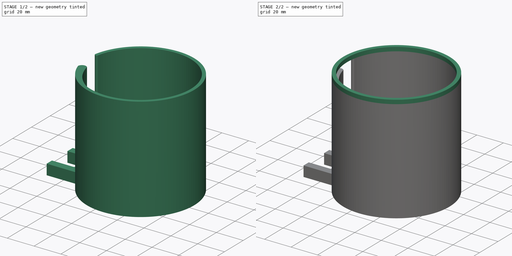
[diagram: build sequence overview — one tinted view per stage of 2, left to right]
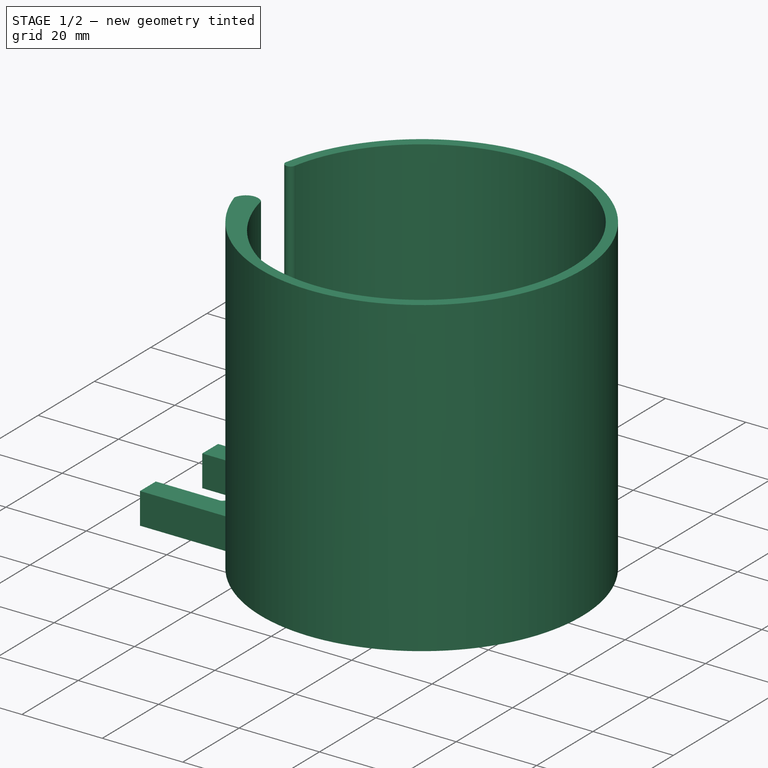
[diagram: stage 1 of 2 — iso view after this stage's code; geometry added in this stage tinted green]
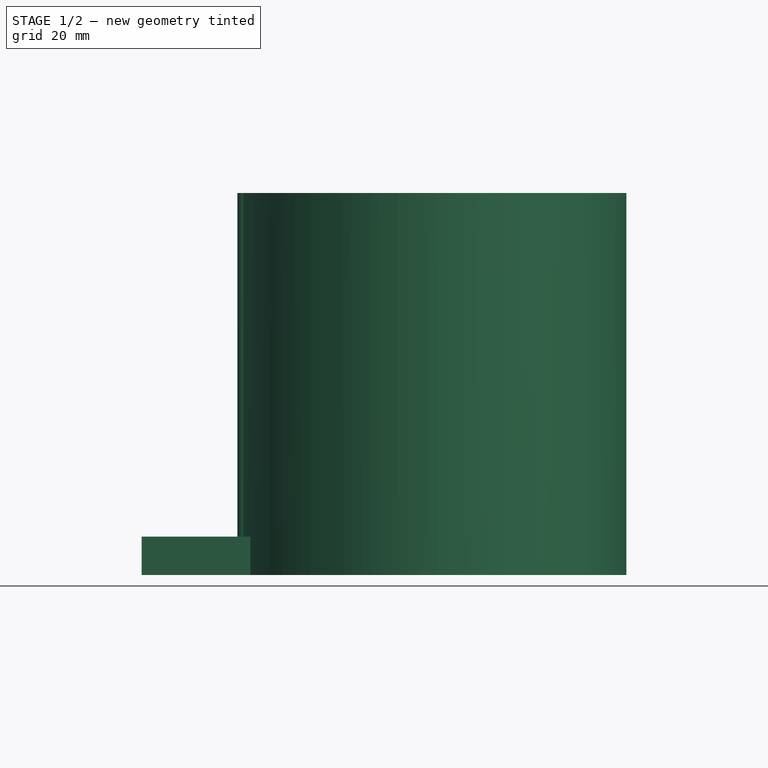
[diagram: stage 1 of 2 — front view after this stage's code; geometry added in this stage tinted green]
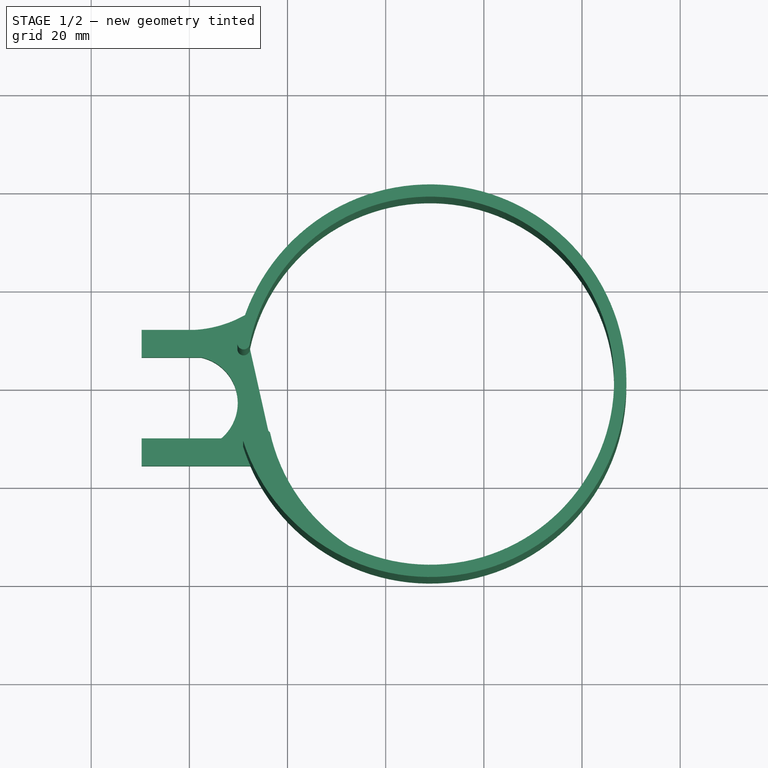
[diagram: stage 1 of 2 — top view after this stage's code; geometry added in this stage tinted green]
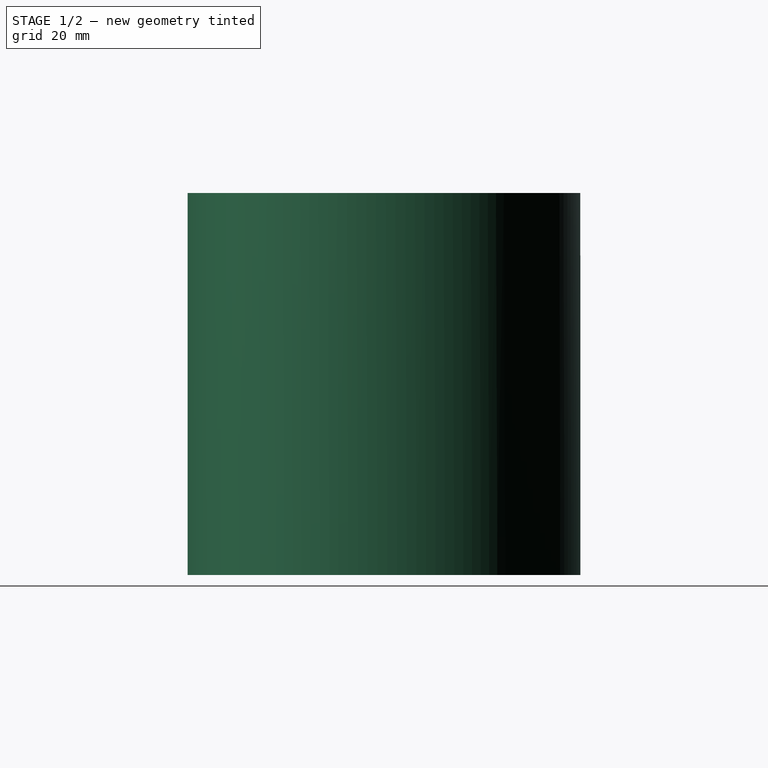
[diagram: stage 1 of 2 — right view after this stage's code; geometry added in this stage tinted green]
FCSTD DOCUMENT  (FreeCAD 0.19R22670 (Git))
Label: collector
License: All rights reserved
LicenseURL: http://en.wikipedia.org/wiki/All_rights_reserved
objects: Sketcher::SketchObject×4, PartDesign::Pad×4, PartDesign::Body×1
note: 13 computed .brp shape members not serialized (recipe doc carries the construction recipe); baked Part::Feature solids carry a one-line shape summary decoded from their .brp

FEATURE [Sketcher::SketchObject] Sketch036
  AttachmentOffset = pos=(0,0,4.25) rot=(0,0,1;0rad)
  MapMode = 5
  Placement = pos=(0,0,4.25) rot=(0,0,1;0rad)
  Support = -> [XY_Plane001]
  sketch-geometry (13):
    g0: LineSegment StartX=221.191 StartY=52.118 StartZ=0 EndX=210.28 EndY=52.118 EndZ=0
    g1: LineSegment StartX=210.28 StartY=52.118 StartZ=0 EndX=210.28 EndY=46.518 EndZ=0
    g2: LineSegment StartX=210.28 StartY=46.518 StartZ=0 EndX=222.439 EndY=46.518 EndZ=0
    g3: LineSegment StartX=210.28 StartY=30.018 StartZ=0 EndX=220.18 EndY=30.018 EndZ=0
    g4: LineSegment StartX=210.28 StartY=30.018 StartZ=0 EndX=210.28 EndY=24.418 EndZ=0
    g5: LineSegment StartX=210.28 StartY=24.418 StartZ=0 EndX=232.431 EndY=24.418 EndZ=0
    g6: ArcOfCircle CenterX=269.035 CenterY=40.5473 CenterZ=0 NormalX=0 NormalY=0 NormalZ=1 AngleXU=0 Radius=40 StartAngle=3.55664 EndAngle=9.04229
    g7: ArcOfCircle CenterX=269.035 CenterY=40.5473 CenterZ=0 NormalX=0 NormalY=0 NormalZ=1 AngleXU=0 Radius=37.5 StartAngle=4.25618 EndAngle=9.21687
    g8: ArcOfCircle CenterX=219.633 CenterY=75.9334 CenterZ=0 NormalX=0 NormalY=0 NormalZ=1 AngleXU=0 Radius=23.8663 StartAngle=4.77773 EndAngle=5.25348
    g9: ArcOfCircle CenterX=272.55 CenterY=37.9682 CenterZ=0 NormalX=0 NormalY=0 NormalZ=1 AngleXU=0 Radius=36.9829 StartAngle=3.35175 EndAngle=4.13988
    g10: LineSegment StartX=236.38 StartY=30.2532 StartZ=0 EndX=232.343 EndY=48.2876 EndZ=0
    g11: LineSegment StartX=220.18 StartY=30.018 StartZ=0 EndX=226.518 EndY=30.018 EndZ=0
    g12: ArcOfCircle CenterX=220.364 CenterY=37.251 CenterZ=0 NormalX=0 NormalY=0 NormalZ=1 AngleXU=0 Radius=9.49664 StartAngle=5.41735 EndAngle=7.63364
  constraints (28):
    c: Horizontal(g0)
    c: Coincident(g0,g1)
    c: Vertical(g1)
    c: Coincident(g2,g1)
    c: Horizontal(g2)
    c: Horizontal(g3)
    c: Coincident(g4,g3)
    c: Vertical(g4)
    c: Coincident(g5,g4)
    c: Horizontal(g5)
    c: DistanceY(g1,g1) = 5.6
    c: DistanceX(g3,g3) = 9.9
    c: DistanceY(g4,g4) = 5.6
    c: Vertical(g3,g1)
    c: DistanceY(g3,g1) = 16.5
    c: Coincident(g6,g5)
    c: Coincident(g7,g6)
    c: Coincident(g8,g0)
    c: Coincident(g8,g6)
    c: Radius(g6) = 40
    c: Radius(g7) = 37.5
    c: Coincident(g9,g7)
    c: Coincident(g10,g9)
    c: Coincident(g10,g7)
    c: Coincident(g11,g3)
    c: Horizontal(g11)
    c: Coincident(g12,g2)
    c: Coincident(g11,g12)
FEATURE [PartDesign::Pad] Pad002
  Direction = (1,1,1)
  Length = 7.8
  Length2 = 100
  Profile = -> Sketch036
  Type = 0
FEATURE [Sketcher::SketchObject] Sketch
  ExternalGeometry = -> [Pad002]
  MapMode = 5
  Placement = pos=(0,0,12.05) rot=(0,0,1;0rad)
  Support = -> [Pad002]
  sketch-geometry (5):
    g0: ArcOfCircle CenterX=269.035 CenterY=40.5473 CenterZ=0 NormalX=0 NormalY=0 NormalZ=1 AngleXU=0 Radius=37.5 StartAngle=4.25518 EndAngle=9.21905
    g1: ArcOfCircle CenterX=272.564 CenterY=37.9714 CenterZ=0 NormalX=0 NormalY=0 NormalZ=1 AngleXU=0 Radius=36.9979 StartAngle=3.35825 EndAngle=4.13859
    g2: ArcOfCircle CenterX=269.035 CenterY=40.5473 CenterZ=0 NormalX=0 NormalY=0 NormalZ=1 AngleXU=0 Radius=40 StartAngle=3.45231 EndAngle=9.23172
    g3: ArcOfCircle CenterX=231.052 CenterY=48.1932 CenterZ=0 NormalX=0 NormalY=0 NormalZ=1 AngleXU=0 Radius=1.27402 StartAngle=3.11918 EndAngle=6.29457
    g4: ArcOfCircle CenterX=234.046 CenterY=28.0247 CenterZ=0 NormalX=0 NormalY=0 NormalZ=1 AngleXU=0 Radius=3.10895 StartAngle=0.69601 EndAngle=3.04722
  constraints (12):
    c: Coincident(g1,g0)
    c: PointOnObject(g1,g-6)
    c: Tangent(g1,g-6)
    c: Horizontal(g1,g-8)
    c: Coincident(g2,g0)
    c: Radius(g2) = 40
    c: Coincident(g0,g-4)
    c: Radius(g0) = 37.5
    c: Coincident(g3,g2)
    c: Coincident(g3,g0)
    c: Coincident(g4,g2)
    c: Coincident(g4,g1)
FEATURE [PartDesign::Pad] Pad
  BaseFeature = -> Pad002
  Direction = (1,1,1)
  Length = 70
  Length2 = 100
  Profile = -> Sketch
  Type = 0
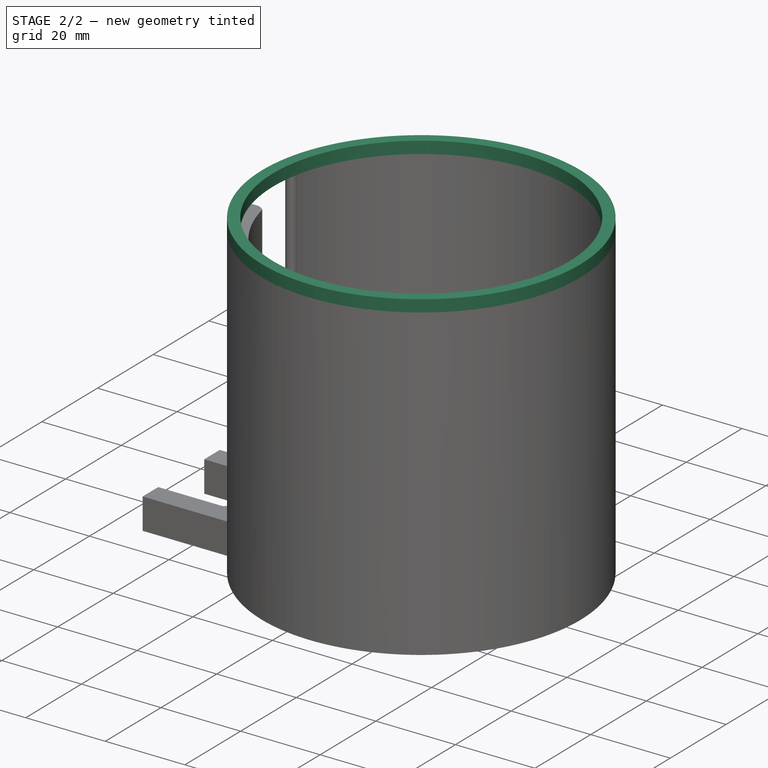
[diagram: stage 2 of 2 — iso view after this stage's code; geometry added in this stage tinted green]
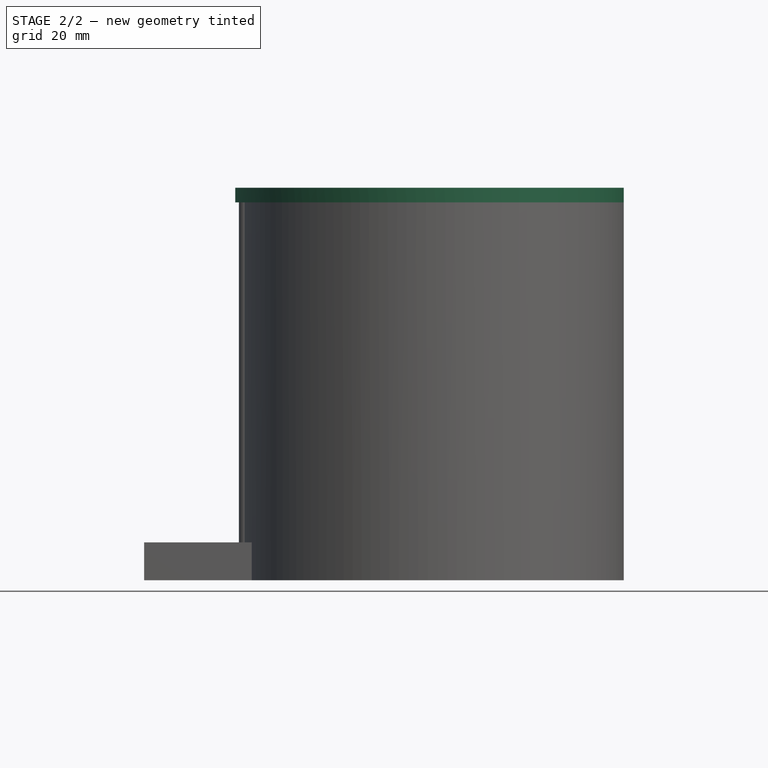
[diagram: stage 2 of 2 — front view after this stage's code; geometry added in this stage tinted green]
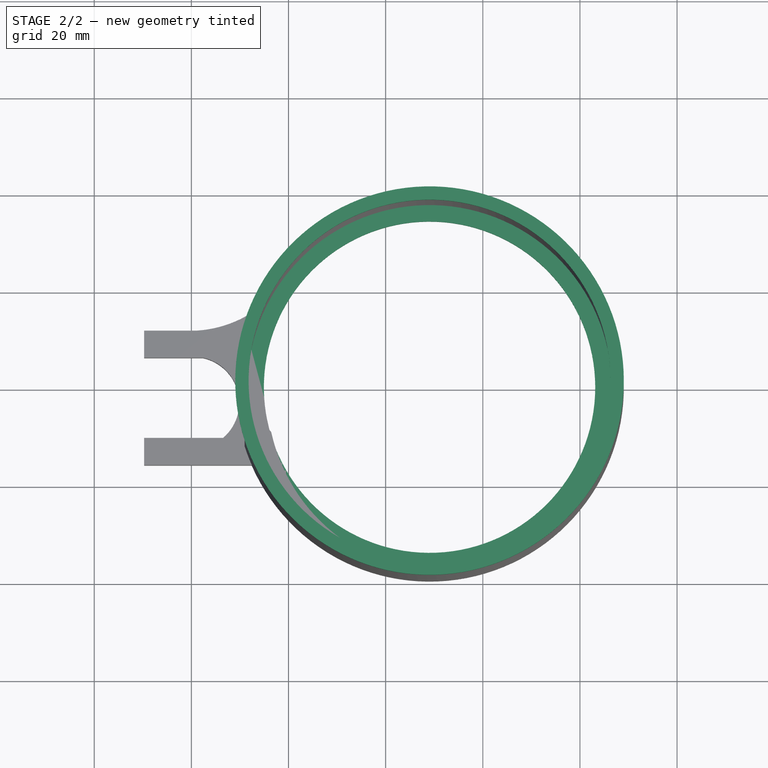
[diagram: stage 2 of 2 — top view after this stage's code; geometry added in this stage tinted green]
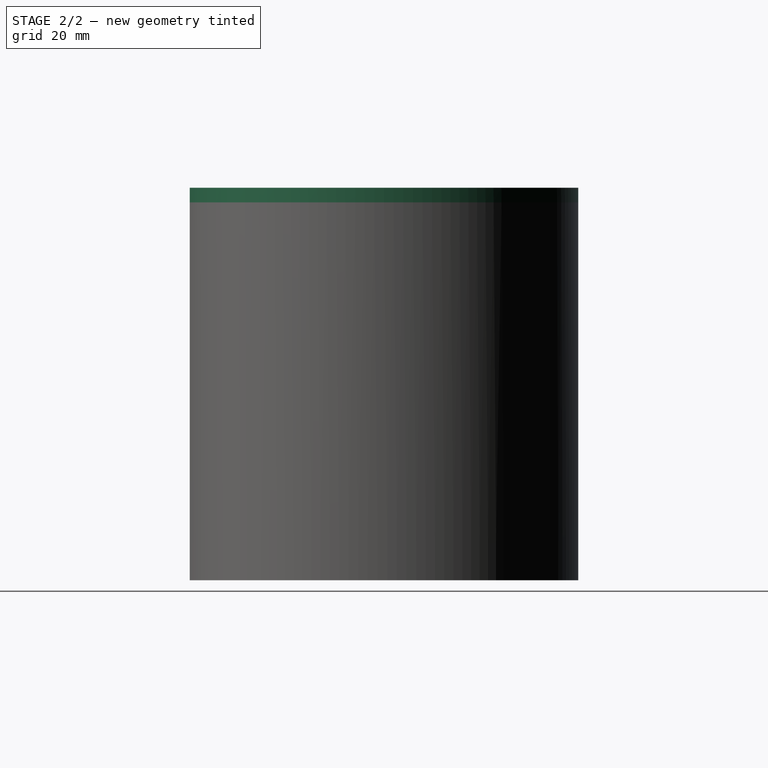
[diagram: stage 2 of 2 — right view after this stage's code; geometry added in this stage tinted green]
FEATURE [Sketcher::SketchObject] Sketch037
  ExternalGeometry = -> [Pad]
  MapMode = 5
  Placement = pos=(0,0,82.05) rot=(0,0,1;0rad)
  Support = -> [Pad]
  sketch-geometry (2):
    g0: Circle CenterX=269.035 CenterY=40.5473 CenterZ=0 NormalX=0 NormalY=0 NormalZ=1 AngleXU=0 Radius=40
    g1: Circle CenterX=269.035 CenterY=40.5473 CenterZ=0 NormalX=0 NormalY=0 NormalZ=1 AngleXU=0 Radius=37.2639
  constraints (3):
    c: Coincident(g0,g-3)
    c: Radius(g0) = 40
    c: Coincident(g1,g0)
FEATURE [PartDesign::Pad] Pad003
  BaseFeature = -> Pad
  Direction = (1,1,1)
  Length = 3
  Length2 = 100
  Profile = -> Sketch037
  Type = 0
FEATURE [Sketcher::SketchObject] Sketch038
  AttachmentOffset = pos=(0,0,4.25) rot=(0,0,1;0rad)
  ExternalGeometry = -> [Pad003]
  MapMode = 5
  Placement = pos=(0,0,4.25) rot=(0,0,1;0rad)
  Support = -> [XY_Plane001]
  sketch-geometry (3):
    g0: Circle CenterX=269.035 CenterY=40.5473 CenterZ=0 NormalX=0 NormalY=0 NormalZ=1 AngleXU=0 Radius=37.75
    g1: Circle CenterX=269.035 CenterY=40.5473 CenterZ=0 NormalX=0 NormalY=0 NormalZ=1 AngleXU=0 Radius=34.1164
    g2: GeomPoint X=235.673 Y=33.4124 Z=0
  constraints (5):
    c: Coincident(g0,g-3)
    c: Radius(g0) = 37.75
    c: Coincident(g1,g0)
    c: PointOnObject(g2,g-4)
    c: PointOnObject(g2,g1)
FEATURE [PartDesign::Pad] Pad004
  BaseFeature = -> Pad003
  Direction = (1,1,1)
  Length = 3
  Length2 = 100
  Profile = -> Sketch038
  Type = 0
FEATURE [PartDesign::Body] Body001  label="collector001"
  Group = -> [Sketch036,Pad002,Sketch,Pad,Sketch037,Pad003,Sketch038,Pad004]
  Origin = -> Origin001
  Tip = -> Pad004
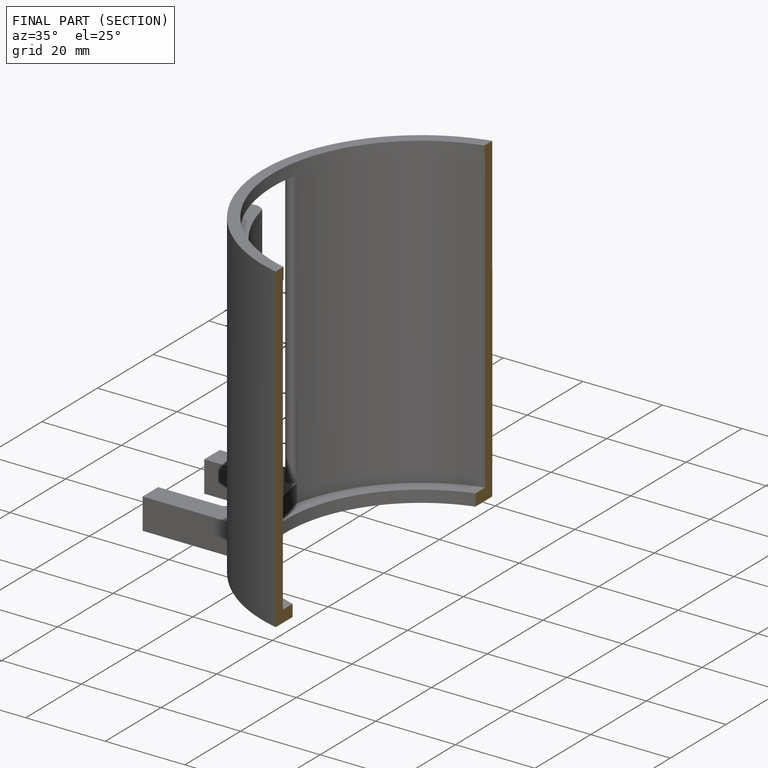
[diagram: finished part — half-section view (interior)]
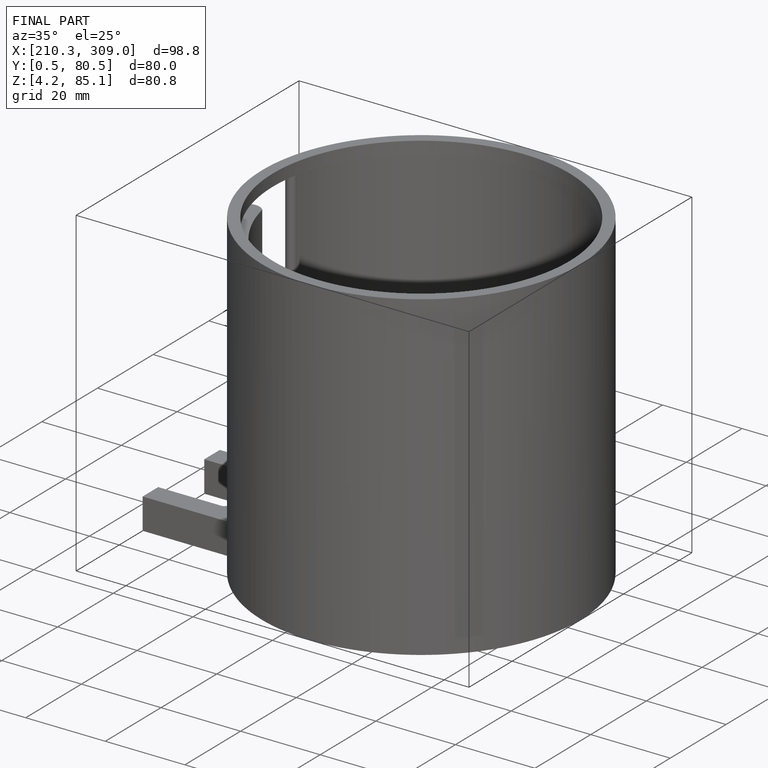
[diagram: finished part — iso view with bounding-box wireframe]
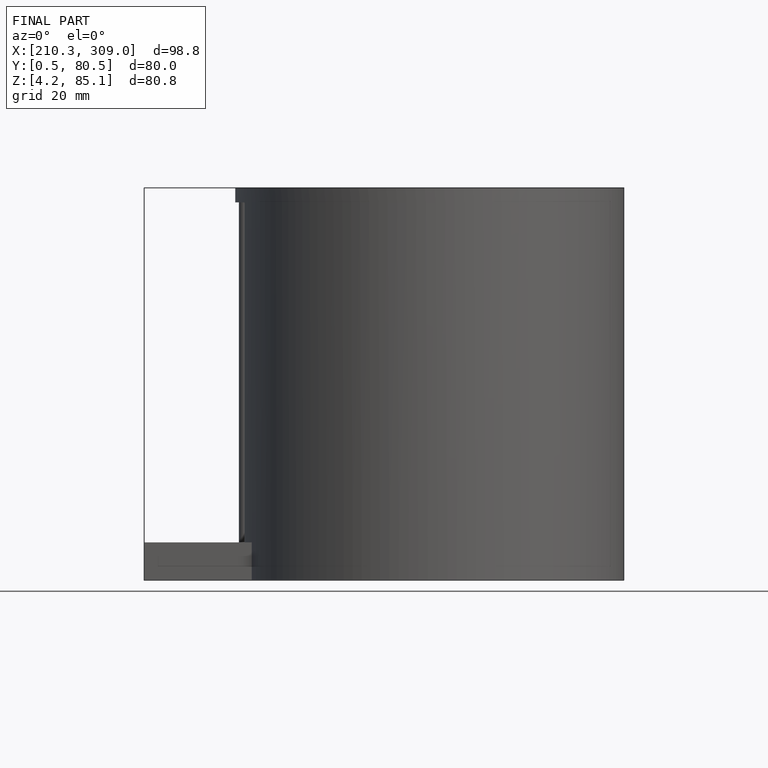
[diagram: finished part — front view with bounding-box wireframe]
